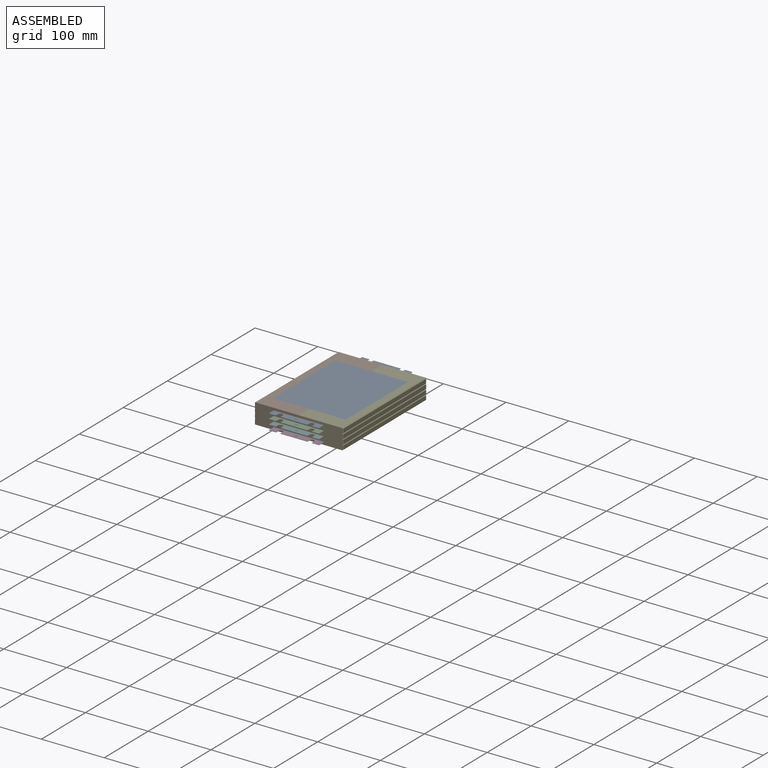
[diagram: assembled view]
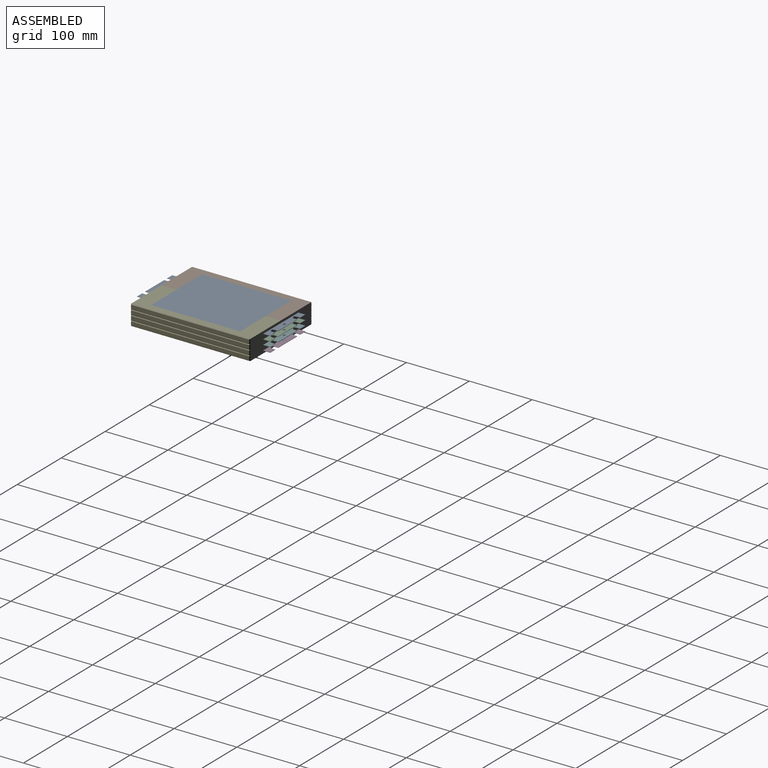
[diagram: assembled view, second angle]
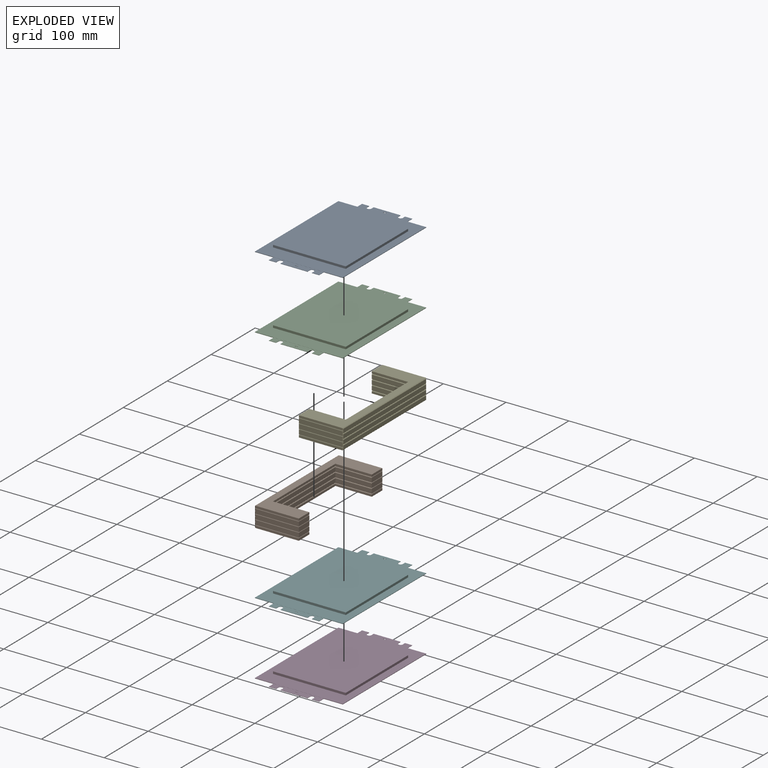
[diagram: exploded view]
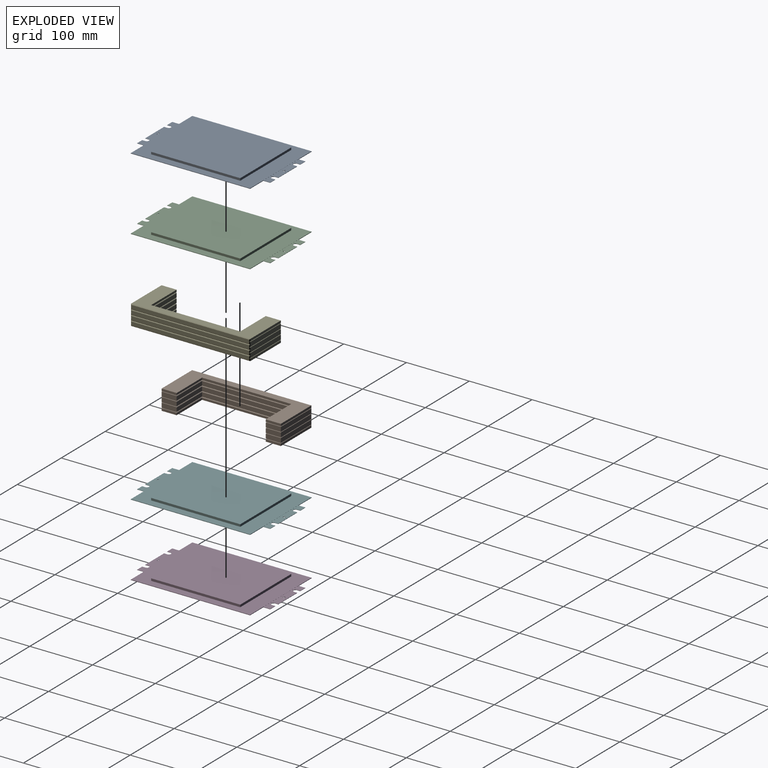
[diagram: exploded view, second angle]
ASSEMBLY  parts=6 mates=15
PART A: 58 faces, bbox 140x212x8 mm
  f0: plane 142x116mm, normal (0,0,1), area 16472mm2, adj f3,f6,f56,f57
  f1: plane 142x116mm, normal (0,0,-1), area 16472mm2, adj f2,f7,f54,f55
  f2: plane 116x3.63mm, normal (0,1,0), area 420.5mm2, adj f1,f53,f54,f55
  f3: plane 116x3.63mm, normal (0,1,0), area 420.5mm2, adj f0,f52,f56,f57
  f4: plane 190x0.75mm, normal (1,0,0), area 142.5mm2, adj f8,f9,f52,f53
  f5: plane 190x0.75mm, normal (-1,0,0), area 142.5mm2, adj f8,f9,f52,f53
  f6: plane 116x3.63mm, normal (0,-1,0), area 420.5mm2, adj f0,f52,f56,f57
  f7: plane 116x3.63mm, normal (0,-1,0), area 420.5mm2, adj f1,f53,f54,f55
  f8: plane 140x0.75mm, normal (0,-1,0), area 65mm2, adj f4,f5,f18,f19,f20,f21,f52,f53
  f9: plane 140x0.75mm, normal (0,1,0), area 65mm2, adj f4,f5,f12,f13,f33,f34,f52,f53
  f10: plane 2x0.5mm, normal (0,-1,0), area 1mm2, adj f12,f13,f39,f49
  f11: plane 2x0.5mm, normal (0,1,0), area 1mm2, adj f12,f13,f39,f46
  f12: plane 80x11mm, normal (0,0,-1), area 762.5mm2, adj f9,f10,f11,f14,f15,f33,f34,f35
  f13: plane 80x11mm, normal (0,0,1), area 762.5mm2, adj f9,f10,f11,f14,f15,f33,f34,f35
  f14: plane 43x0.5mm, normal (0,1,0), area 21.5mm2, adj f12,f13,f41,f43
  f15: plane 11.5x0.5mm, normal (0,1,0), area 5.8mm2, adj f12,f13,f34,f40
  f16: plane 11.5x0.5mm, normal (0,-1,0), area 5.8mm2, adj f18,f19,f21,f31
  f17: plane 43x0.5mm, normal (0,-1,0), area 21.5mm2, adj f18,f19,f28,f32
  f18: plane 80x11mm, normal (0,0,-1), area 766.5mm2, adj f8,f16,f17,f20,f21,f22,f23,f24
  f19: plane 80x11mm, normal (0,0,1), area 766.5mm2, adj f8,f16,f17,f20,f21,f22,f23,f24
  f20: plane 11x0.5mm, normal (1,0,0), area 5.5mm2, adj f8,f18,f19,f22
  f21: plane 11x0.5mm, normal (-1,0,0), area 5.5mm2, adj f8,f16,f18,f19
  f22: plane 11.5x0.5mm, normal (0,-1,0), area 5.8mm2, adj f18,f19,f20,f29
  f23: plane 5x0.5mm, normal (0,1,0), area 2.5mm2, adj f18,f19,f24,f26
  f24: plane 1x0.5mm, normal (-1,0,0), area 0.5mm2, adj f18,f19,f23,f25
  f25: plane 5x0.5mm, normal (0,-1,0), area 2.5mm2, adj f18,f19,f24,f26
  f26: plane 1x0.5mm, normal (1,0,0), area 0.5mm2, adj f18,f19,f23,f25
  f27: cylinder r=3.5mm len=7mm, axis (0,0,1), area 5.5mm2, adj f18,f19,f28,f29
  f28: plane 5x0.5mm, normal (1,0,0), area 2.5mm2, adj f17,f18,f19,f27
  f29: plane 5x0.5mm, normal (-1,0,0), area 2.5mm2, adj f18,f19,f22,f27
  f30: cylinder r=3.5mm len=7mm, axis (0,0,1), area 5.5mm2, adj f18,f19,f31,f32
  f31: plane 5x0.5mm, normal (1,0,0), area 2.5mm2, adj f16,f18,f19,f30
  f32: plane 5x0.5mm, normal (-1,0,0), area 2.5mm2, adj f17,f18,f19,f30
  f33: plane 11x0.5mm, normal (-1,0,0), area 5.5mm2, adj f9,f12,f13,f35
  f34: plane 11x0.5mm, normal (1,0,0), area 5.5mm2, adj f9,f12,f13,f15
  f35: plane 11.5x0.5mm, normal (0,1,0), area 5.8mm2, adj f12,f13,f33,f44
  f36: plane 2x0.5mm, normal (0,-1,0), area 1mm2, adj f12,f13,f37,f50
  f37: plane 1x0.5mm, normal (1,0,0), area 0.5mm2, adj f12,f13,f36,f38
  f38: plane 2x0.5mm, normal (0,1,0), area 1mm2, adj f12,f13,f37,f47
  f39: plane 1x0.5mm, normal (-1,0,0), area 0.5mm2, adj f10,f11,f12,f13
  f40: plane 5x0.5mm, normal (-1,0,0), area 2.5mm2, adj f12,f13,f15,f42
  f41: plane 5x0.5mm, normal (1,0,0), area 2.5mm2, adj f12,f13,f14,f42
  f42: cylinder r=3.5mm len=7mm, axis (0,0,1), area 5.5mm2, adj f12,f13,f40,f41
  f43: plane 5x0.5mm, normal (-1,0,0), area 2.5mm2, adj f12,f13,f14,f45
  f44: plane 5x0.5mm, normal (1,0,0), area 2.5mm2, adj f12,f13,f35,f45
  f45: cylinder r=3.5mm len=7mm, axis (0,0,1), area 5.5mm2, adj f12,f13,f43,f44
  f46: plane 2x0.5mm, normal (-1,0,0), area 1mm2, adj f11,f12,f13,f48
  f47: plane 2x0.5mm, normal (1,0,0), area 1mm2, adj f12,f13,f38,f48
  f48: plane 1x0.5mm, normal (0,1,0), area 0.5mm2, adj f12,f13,f46,f47
  f49: plane 2x0.5mm, normal (-1,0,0), area 1mm2, adj f10,f12,f13,f51
  f50: plane 2x0.5mm, normal (1,0,0), area 1mm2, adj f12,f13,f36,f51
  f51: plane 1x0.5mm, normal (0,-1,0), area 0.5mm2, adj f12,f13,f49,f50
  f52: plane 190x140mm, normal (0,0,1), area 10128mm2, adj f3,f4,f5,f6,f8,f9,f56,f57
  f53: plane 190x140mm, normal (0,0,-1), area 10128mm2, adj f2,f4,f5,f7,f8,f9,f54,f55
  f54: plane 142x3.63mm, normal (-1,0,0), area 514.8mm2, adj f1,f2,f7,f53
  f55: plane 142x3.63mm, normal (1,0,0), area 514.8mm2, adj f1,f2,f7,f53
  f56: plane 142x3.63mm, normal (1,0,0), area 514.7mm2, adj f0,f3,f6,f52
  f57: plane 142x3.63mm, normal (-1,0,0), area 514.7mm2, adj f0,f3,f6,f52
PART B: 93 faces, bbox 70.5x190x32 mm
  f0: plane 69.5x7.25mm, normal (0,-1,0), area 503.9mm2, adj f5,f6,f24,f53,f67
  f1: plane 69.5x7.25mm, normal (0,1,0), area 503.9mm2, adj f3,f4,f27,f30,f49
  f2: plane 24x7.25mm, normal (-1,0,0), area 173.7mm2, adj f5,f8,f13,f18,f53,f61
  f3: plane 24x7.25mm, normal (-1,0,0), area 173.7mm2, adj f1,f4,f17,f21,f30,f43
  f4: plane 190x70mm, normal (0,0,-1), area 4934.3mm2, adj f1,f3,f7,f10,f11,f21,f22,f23
  f5: plane 190x70mm, normal (0,0,1), area 4934.3mm2, adj f0,f2,f6,f8,f11,f18,f19,f20
  f6: plane 24x7.25mm, normal (-1,0,0), area 173.7mm2, adj f0,f5,f12,f20,f53,f63
  f7: plane 69.5x7.25mm, normal (0,-1,0), area 503.9mm2, adj f4,f10,f24,f30,f46
  f8: plane 69.5x7.25mm, normal (0,1,0), area 503.9mm2, adj f2,f5,f27,f53,f70
  f9: plane 188x6mm, normal (1,0,0), area 1128mm2, adj f24,f25,f26,f27
  f10: plane 24x7.25mm, normal (-1,0,0), area 173.7mm2, adj f4,f7,f16,f23,f30,f45
  f11: plane 189x0.75mm, normal (-1,0,0), area 141.8mm2, adj f4,f5,f24,f27
  f12: plane 58x6.25mm, normal (0,1,0), area 362.5mm2, adj f6,f14,f20,f63
  f13: plane 58x6.25mm, normal (0,-1,0), area 362.5mm2, adj f2,f14,f18,f61
  f14: plane 142x6.25mm, normal (-1,0,0), area 887.5mm2, adj f12,f13,f19,f62
  f15: plane 142x6.25mm, normal (-1,0,0), area 887.5mm2, adj f16,f17,f22,f44
  f16: plane 58x6.25mm, normal (0,1,0), area 362.5mm2, adj f10,f15,f23,f45
  f17: plane 58x6.25mm, normal (0,-1,0), area 362.5mm2, adj f3,f15,f21,f43
  f18: plane 58.5x0.5mm, normal (0,-0.71,0.71), area 41.2mm2, adj f2,f5,f13,f19
  f19: plane 143x0.5mm, normal (-0.71,0,0.71), area 100.8mm2, adj f5,f14,f18,f20
  f20: plane 58.5x0.5mm, normal (0,0.71,0.71), area 41.2mm2, adj f5,f6,f12,f19
  f21: plane 58.5x0.5mm, normal (0,-0.71,-0.71), area 41.2mm2, adj f3,f4,f17,f22
  f22: plane 143x0.5mm, normal (-0.71,0,-0.71), area 100.8mm2, adj f4,f15,f21,f23
  f23: plane 58.5x0.5mm, normal (0,0.71,-0.71), area 41.2mm2, adj f4,f10,f16,f22
  f24: plane 8x1mm, normal (0.71,-0.71,0), area 9.4mm2, adj f0,f4,f5,f7,f9,f11,f25,f26
  f25: plane 190x1mm, normal (0.71,0,-0.71), area 267.3mm2, adj f9,f24,f27,f68
  f26: plane 190x1mm, normal (0.71,0,0.71), area 267.3mm2, adj f9,f24,f27,f48
  f27: plane 8x1mm, normal (0.71,0.71,0), area 9.4mm2, adj f1,f4,f5,f8,f9,f11,f25,f26
  f28: plane 69.5x3.63mm, normal (0,-1,0), area 251.9mm2, adj f31,f32,f33,f46
  f29: plane 24x3.63mm, normal (-1,0,0), area 86.9mm2, adj f31,f33,f34,f38,f40
  f30: plane 190x70mm, normal (0,0,1), area 4934.3mm2, adj f1,f3,f7,f10,f36,f43,f44,f45
  f31: plane 190x70mm, normal (0,0,-1), area 4934.3mm2, adj f28,f29,f32,f34,f36,f40,f41,f42
  f32: plane 24x3.63mm, normal (-1,0,0), area 86.9mm2, adj f28,f31,f33,f37,f42
  f33: plane 190x69.5mm, normal (0,0,1), area 4969mm2, adj f28,f29,f32,f34,f37,f38,f39,f47
  f34: plane 69.5x3.63mm, normal (0,1,0), area 251.9mm2, adj f29,f31,f33,f49
  f35: plane 188x6mm, normal (1,0,0), area 1128mm2, adj f46,f47,f48,f49
  f36: plane 189x0.75mm, normal (-1,0,0), area 141.8mm2, adj f30,f31,f46,f49
  f37: plane 58x3.13mm, normal (0,1,0), area 181.3mm2, adj f32,f33,f39,f42
  f38: plane 58x3.13mm, normal (0,-1,0), area 181.3mm2, adj f29,f33,f39,f40
  f39: plane 142x3.13mm, normal (-1,0,0), area 443.8mm2, adj f33,f37,f38,f41
  f40: plane 58.5x0.5mm, normal (0,-0.71,-0.71), area 41.2mm2, adj f29,f31,f38,f41
  f41: plane 143x0.5mm, normal (-0.71,0,-0.71), area 100.8mm2, adj f31,f39,f40,f42
  f42: plane 58.5x0.5mm, normal (0,0.71,-0.71), area 41.2mm2, adj f31,f32,f37,f41
  f43: plane 58.5x0.5mm, normal (0,-0.71,0.71), area 41.2mm2, adj f3,f17,f30,f44
  f44: plane 143x0.5mm, normal (-0.71,0,0.71), area 100.8mm2, adj f15,f30,f43,f45
  f45: plane 58.5x0.5mm, normal (0,0.71,0.71), area 41.2mm2, adj f10,f16,f30,f44
  f46: plane 8x1mm, normal (0.71,-0.71,0), area 9.4mm2, adj f7,f28,f30,f31,f35,f36,f47,f48
  f47: plane 190x1mm, normal (0.71,0,0.71), area 267.3mm2, adj f33,f35,f46,f49
  f48: plane 190x1mm, normal (0.71,0,-0.71), area 267.3mm2, adj f26,f35,f46,f49
  f49: plane 8x1mm, normal (0.71,0.71,0), area 9.4mm2, adj f1,f30,f31,f34,f35,f36,f47,f48
  f50: plane 69.5x7.25mm, normal (0,1,0), area 503.9mm2, adj f51,f52,f70,f73,f92
  f51: plane 24x7.25mm, normal (-1,0,0), area 173.7mm2, adj f50,f52,f60,f64,f73,f86
  f52: plane 190x70mm, normal (0,0,1), area 4934.3mm2, adj f50,f51,f54,f56,f57,f64,f65,f66
  f53: plane 190x70mm, normal (0,0,-1), area 4934.3mm2, adj f0,f2,f6,f8,f57,f61,f62,f63
  f54: plane 69.5x7.25mm, normal (0,-1,0), area 503.9mm2, adj f52,f56,f67,f73,f89
  f55: plane 188x6mm, normal (1,0,0), area 1128mm2, adj f67,f68,f69,f70
  f56: plane 24x7.25mm, normal (-1,0,0), area 173.7mm2, adj f52,f54,f59,f66,f73,f88
  f57: plane 189x0.75mm, normal (-1,0,0), area 141.8mm2, adj f52,f53,f67,f70
  f58: plane 142x6.25mm, normal (-1,0,0), area 887.5mm2, adj f59,f60,f65,f87
  f59: plane 58x6.25mm, normal (0,1,0), area 362.5mm2, adj f56,f58,f66,f88
  f60: plane 58x6.25mm, normal (0,-1,0), area 362.5mm2, adj f51,f58,f64,f86
  f61: plane 58.5x0.5mm, normal (0,-0.71,-0.71), area 41.2mm2, adj f2,f13,f53,f62
  f62: plane 143x0.5mm, normal (-0.71,0,-0.71), area 100.8mm2, adj f14,f53,f61,f63
  f63: plane 58.5x0.5mm, normal (0,0.71,-0.71), area 41.2mm2, adj f6,f12,f53,f62
  f64: plane 58.5x0.5mm, normal (0,-0.71,0.71), area 41.2mm2, adj f51,f52,f60,f65
  f65: plane 143x0.5mm, normal (-0.71,0,0.71), area 100.8mm2, adj f52,f58,f64,f66
  f66: plane 58.5x0.5mm, normal (0,0.71,0.71), area 41.2mm2, adj f52,f56,f59,f65
  f67: plane 8x1mm, normal (0.71,-0.71,0), area 9.4mm2, adj f0,f52,f53,f54,f55,f57,f68,f69
  f68: plane 190x1mm, normal (0.71,0,0.71), area 267.3mm2, adj f25,f55,f67,f70
  f69: plane 190x1mm, normal (0.71,0,-0.71), area 267.3mm2, adj f55,f67,f70,f91
  f70: plane 8x1mm, normal (0.71,0.71,0), area 9.4mm2, adj f8,f50,f52,f53,f55,f57,f68,f69
  f71: plane 69.5x3.63mm, normal (0,-1,0), area 251.9mm2, adj f74,f75,f76,f89
  f72: plane 24x3.63mm, normal (-1,0,0), area 86.9mm2, adj f74,f76,f77,f81,f83
  f73: plane 190x70mm, normal (0,0,-1), area 4934.3mm2, adj f50,f51,f54,f56,f79,f86,f87,f88
  f74: plane 190x70mm, normal (0,0,1), area 4934.3mm2, adj f71,f72,f75,f77,f79,f83,f84,f85
  f75: plane 24x3.63mm, normal (-1,0,0), area 86.9mm2, adj f71,f74,f76,f80,f85
  f76: plane 190x69.5mm, normal (0,0,-1), area 4969mm2, adj f71,f72,f75,f77,f80,f81,f82,f90
  f77: plane 69.5x3.63mm, normal (0,1,0), area 251.9mm2, adj f72,f74,f76,f92
  f78: plane 188x6mm, normal (1,0,0), area 1128mm2, adj f89,f90,f91,f92
  f79: plane 189x0.75mm, normal (-1,0,0), area 141.8mm2, adj f73,f74,f89,f92
  f80: plane 58x3.13mm, normal (0,1,0), area 181.3mm2, adj f75,f76,f82,f85
  f81: plane 58x3.13mm, normal (0,-1,0), area 181.3mm2, adj f72,f76,f82,f83
  f82: plane 142x3.13mm, normal (-1,0,0), area 443.8mm2, adj f76,f80,f81,f84
  f83: plane 58.5x0.5mm, normal (0,-0.71,0.71), area 41.2mm2, adj f72,f74,f81,f84
  f84: plane 143x0.5mm, normal (-0.71,0,0.71), area 100.8mm2, adj f74,f82,f83,f85
  f85: plane 58.5x0.5mm, normal (0,0.71,0.71), area 41.2mm2, adj f74,f75,f80,f84
  f86: plane 58.5x0.5mm, normal (0,-0.71,-0.71), area 41.2mm2, adj f51,f60,f73,f87
  f87: plane 143x0.5mm, normal (-0.71,0,-0.71), area 100.8mm2, adj f58,f73,f86,f88
  f88: plane 58.5x0.5mm, normal (0,0.71,-0.71), area 41.2mm2, adj f56,f59,f73,f87
  f89: plane 8x1mm, normal (0.71,-0.71,0), area 9.4mm2, adj f54,f71,f73,f74,f78,f79,f90,f91
  f90: plane 190x1mm, normal (0.71,0,-0.71), area 267.3mm2, adj f76,f78,f89,f92
  f91: plane 190x1mm, normal (0.71,0,0.71), area 267.3mm2, adj f69,f78,f89,f92
  f92: plane 8x1mm, normal (0.71,0.71,0), area 9.4mm2, adj f50,f73,f74,f77,f78,f79,f90,f91
PART C: same geometry as A
PART D: same geometry as A
PART E: same geometry as B
PART F: same geometry as A
PLACE A t=(-70,0,24)mm
PLACE B rot(axis=(0,1,0),180deg) t=(0,190,16)mm
PLACE C t=(-70,0,16)mm
PLACE D t=(-70,0,0)mm
PLACE E t=(0,190,16)mm
PLACE F t=(-70,0,8)mm
MATE planar F.f4 <-> E.f57  axis (1,0,0) through (70,95,12)mm
MATE planar E.f59 <-> D.f6  axis (0,1,0) through (0,24,8)mm
MATE planar C.f6 <-> E.f16  axis (0,-1,0) through (0,24,22.19)mm
MATE planar B.f7 <-> E.f28  axis (0,-1,0) through (-34.75,0,8)mm
MATE planar F.f53 <-> E.f52  axis (0,0,-1) through (0,95,11.63)mm
MATE planar F.f6 <-> E.f12  axis (0,-1,0) through (0,24,14.19)mm
MATE planar B.f76 <-> E.f33  axis (0,0,1) through (-29,24,32)mm
MATE planar C.f53 <-> E.f5  axis (0,0,-1) through (-70,0,19.63)mm
MATE planar B.f75 <-> E.f32  axis (1,0,0) through (0,23.5,28.38)mm
MATE planar A.f53 <-> E.f30  axis (0,0,-1) through (0,95,27.63)mm
MATE planar D.f53 <-> E.f74  axis (0,0,-1) through (0,95,3.63)mm
MATE planar A.f6 <-> E.f37  axis (0,-1,0) through (0,24,30.19)mm
MATE planar D.f4 <-> E.f79  axis (1,0,0) through (70,95,4)mm
MATE planar C.f4 <-> E.f11  axis (1,0,0) through (70,95,20)mm
MATE planar A.f4 <-> E.f36  axis (1,0,0) through (70,0,28.38)mm
